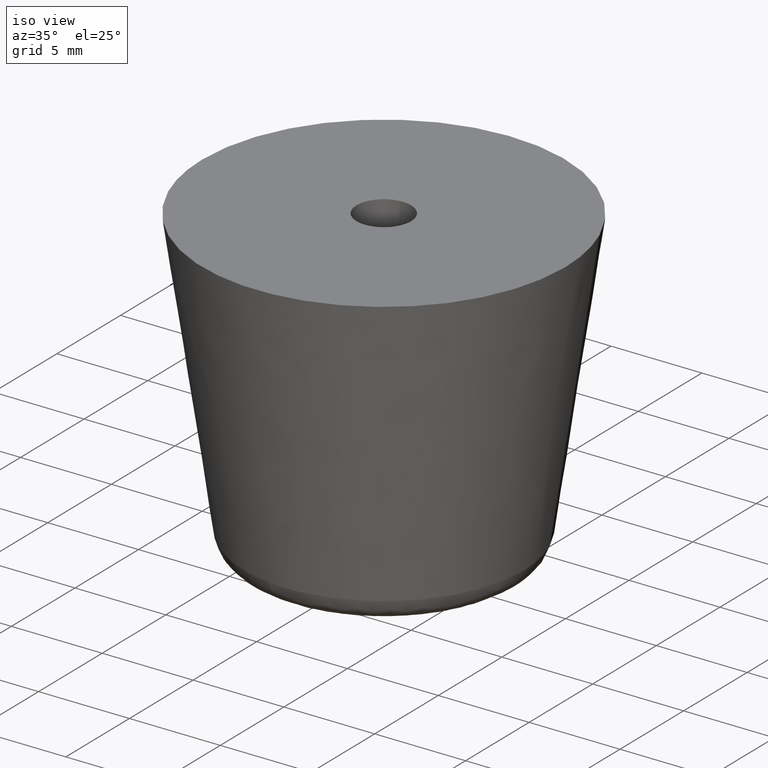
[diagram: clean part render]
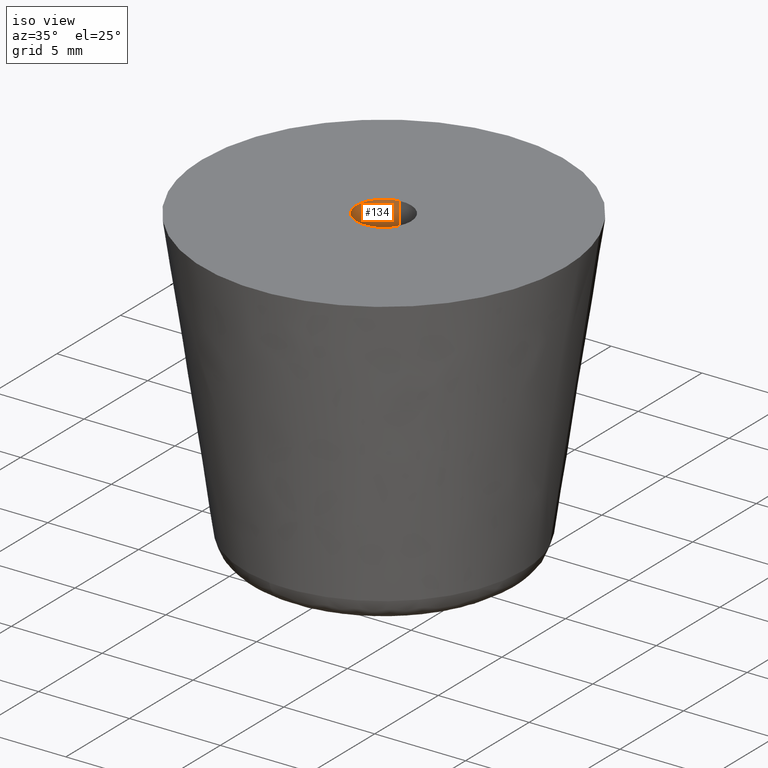
[diagram: same view with one face highlighted and labeled with its STEP entity id]
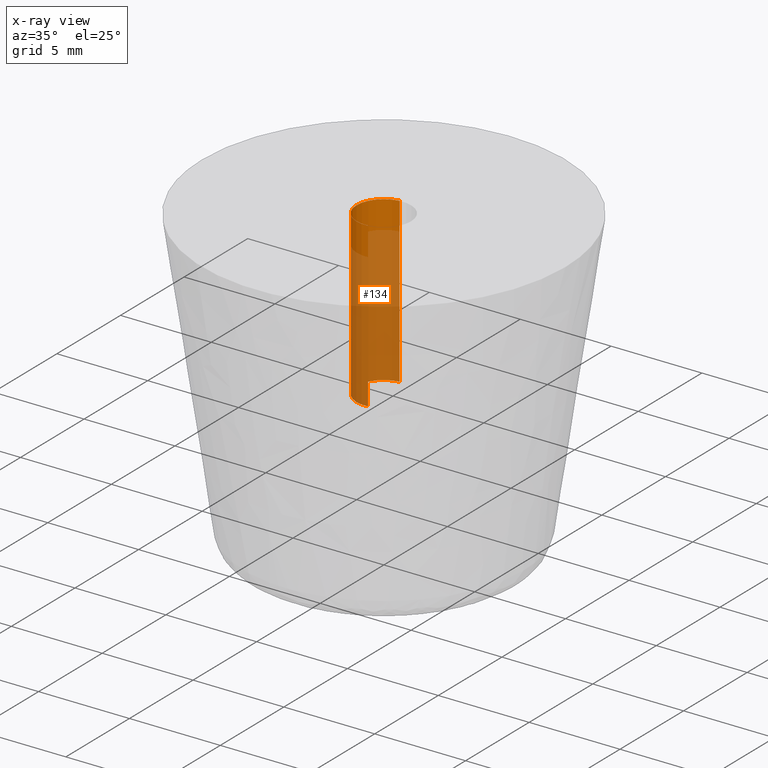
[diagram: x-ray of the same camera — body ghosted, the highlighted face saturated]
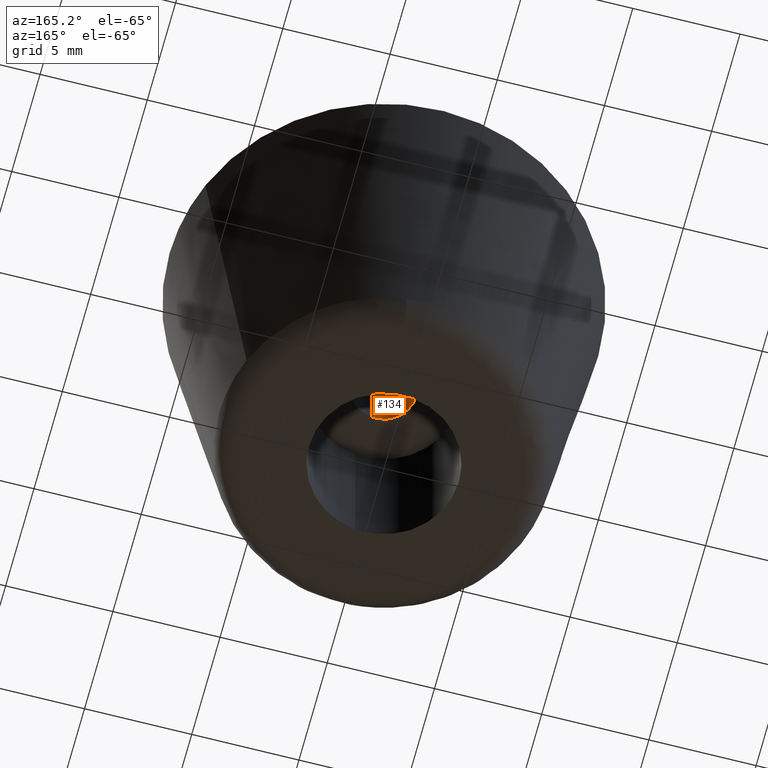
[diagram: same view with one face highlighted and labeled with its STEP entity id]
A machine part, iso view. The second image highlights one B-rep face of the part: STEP entity #134.
The next image is the same camera in x-ray: the body ghosted, the highlighted face saturated — about 80% of this face is hidden behind the body in this view.
A second angle (auxiliary view) of the same face is appended — the face is thin or edge-on in the first view.
In plain terms, the highlighted cylindrical surface (edge-blend (fillet) strip) has radius 1.5 mm, axis along (-0, -0, 1).
Its self-contained STEP definition (entity closure, byte-faithful):
#134=ADVANCED_FACE('',(#363),#362,.F.);
#362=CYLINDRICAL_SURFACE('',#546,1.50000000000E+000);
#363=FACE_OUTER_BOUND('',#547,.T.);
#543=CARTESIAN_POINT('',(-4.60424108802E-014,-1.07296836419E-014,1.72250000000E+001));
#544=DIRECTION('',(-9.65643896021E-015,-2.34038870062E-015,1.00000000000E+000));
#545=DIRECTION('',(1.18034234657E-001,-9.93009526364E-001,-1.18423789293E-015));
#546=AXIS2_PLACEMENT_3D('',#543,#544,#545);
#547=EDGE_LOOP('',(#678,#679,#680,#681,#682,#683));
#678=ORIENTED_EDGE('',*,*,#711,.F.);
#679=ORIENTED_EDGE('',*,*,#713,.F.);
#680=ORIENTED_EDGE('',*,*,#750,.F.);
#681=ORIENTED_EDGE('',*,*,#729,.T.);
#682=ORIENTED_EDGE('',*,*,#731,.T.);
#683=ORIENTED_EDGE('',*,*,#751,.T.);
#711=EDGE_CURVE('',#937,#938,#939,.T.);
#713=EDGE_CURVE('',#945,#937,#952,.T.);
#729=EDGE_CURVE('',#1063,#1064,#1065,.T.);
#731=EDGE_CURVE('',#1064,#1071,#1078,.T.);
#750=EDGE_CURVE('',#1063,#945,#1200,.T.);
#751=EDGE_CURVE('',#1071,#938,#1206,.T.);
#937=VERTEX_POINT('',#1335);
#938=VERTEX_POINT('',#1336);
#939=CIRCLE('',#1340,1.50000000000E+000);
#945=VERTEX_POINT('',#1341);
#952=CIRCLE('',#1349,1.50000000000E+000);
#1063=VERTEX_POINT('',#1425);
#1064=VERTEX_POINT('',#1426);
#1065=CIRCLE('',#1430,1.50000000000E+000);
#1071=VERTEX_POINT('',#1431);
#1078=CIRCLE('',#1439,1.50000000000E+000);
#1200=(BOUNDED_CURVE() B_SPLINE_CURVE(1,(#1504,#1505),.UNSPECIFIED.,.F.,.F.) B_SPLINE_CURVE_WITH_KNOTS((2,2),(8.33333343261E-002,9.16666664274E-001),.UNSPECIFIED.) CURVE() GEOMETRIC_REPRESENTATION_ITEM() RATIONAL_B_SPLINE_CURVE((1.00000000000E+000,1.00000000000E+000)) REPRESENTATION_ITEM('') );
#1206=(BOUNDED_CURVE() B_SPLINE_CURVE(1,(#1506,#1507),.UNSPECIFIED.,.F.,.F.) B_SPLINE_CURVE_WITH_KNOTS((2,2),(8.33333333333E-002,9.16666666667E-001),.UNSPECIFIED.) CURVE() GEOMETRIC_REPRESENTATION_ITEM() RATIONAL_B_SPLINE_CURVE((7.50000000000E-001,7.50000000000E-001)) REPRESENTATION_ITEM('') );
#1335=CARTESIAN_POINT('',(-1.50000000000E+000,-5.27355936697E-016,1.70000000000E+001));
#1336=CARTESIAN_POINT('',(-1.77308843490E-001,1.48948366021E+000,1.70000000000E+001));
#1337=CARTESIAN_POINT('',(1.22124532709E-015,6.66133814775E-016,1.70000000000E+001));
#1338=DIRECTION('',(-7.12319279217E-014,-1.08521435056E-014,-1.00000000000E+000));
#1339=DIRECTION('',(-1.00000000000E+000,-4.30211422042E-016,7.12319279217E-014));
#1340=AXIS2_PLACEMENT_3D('',#1337,#1338,#1339);
#1341=CARTESIAN_POINT('',(1.77050807278E-001,-1.48951435429E+000,1.70000000000E+001));
#1346=CARTESIAN_POINT('',(1.22124532709E-015,6.66133814775E-016,1.70000000000E+001));
#1347=DIRECTION('',(-7.12319279217E-014,-1.08521435056E-014,-1.00000000000E+000));
#1348=DIRECTION('',(-1.00000000000E+000,-4.30211422042E-016,7.12319279217E-014));
#1349=AXIS2_PLACEMENT_3D('',#1346,#1347,#1348);
#1425=CARTESIAN_POINT('',(1.77050807278E-001,-1.48951435429E+000,8.00000000000E+000));
#1426=CARTESIAN_POINT('',(-1.50000000000E+000,-9.71445146547E-016,8.00000000000E+000));
#1427=CARTESIAN_POINT('',(1.33226762955E-015,6.66133814775E-016,8.00000000000E+000));
#1428=DIRECTION('',(-7.34576856308E-015,-2.76868667095E-016,-1.00000000000E+000));
#1429=DIRECTION('',(-1.00000000000E+000,-7.21644966006E-016,7.34576856308E-015));
#1430=AXIS2_PLACEMENT_3D('',#1427,#1428,#1429);
#1431=CARTESIAN_POINT('',(-1.77308843490E-001,1.48948366021E+000,8.00000000000E+000));
#1436=CARTESIAN_POINT('',(1.33226762955E-015,6.66133814775E-016,8.00000000000E+000));
#1437=DIRECTION('',(-7.34576856308E-015,-2.76868667095E-016,-1.00000000000E+000));
#1438=DIRECTION('',(-1.00000000000E+000,-7.21644966006E-016,7.34576856308E-015));
#1439=AXIS2_PLACEMENT_3D('',#1436,#1437,#1438);
#1504=CARTESIAN_POINT('',(1.77051351985E-001,-1.48951428955E+000,8.00000001072E+000));
#1505=CARTESIAN_POINT('',(1.77051351985E-001,-1.48951428955E+000,1.69999999742E+001));
#1506=CARTESIAN_POINT('',(-1.77051351985E-001,1.48951428955E+000,8.00000000000E+000));
#1507=CARTESIAN_POINT('',(-1.77051351985E-001,1.48951428955E+000,1.70000000000E+001));